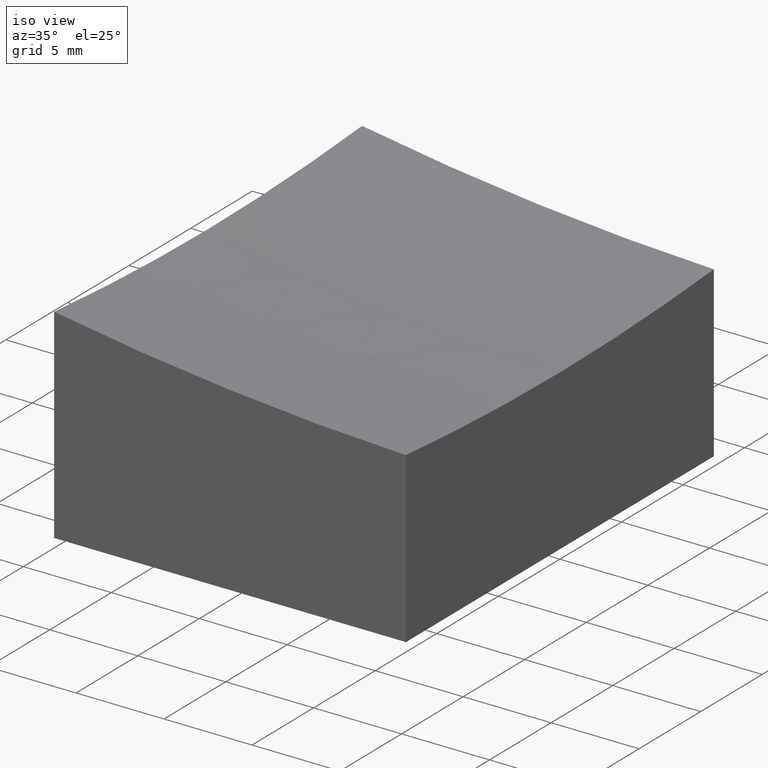
[diagram: clean part render]
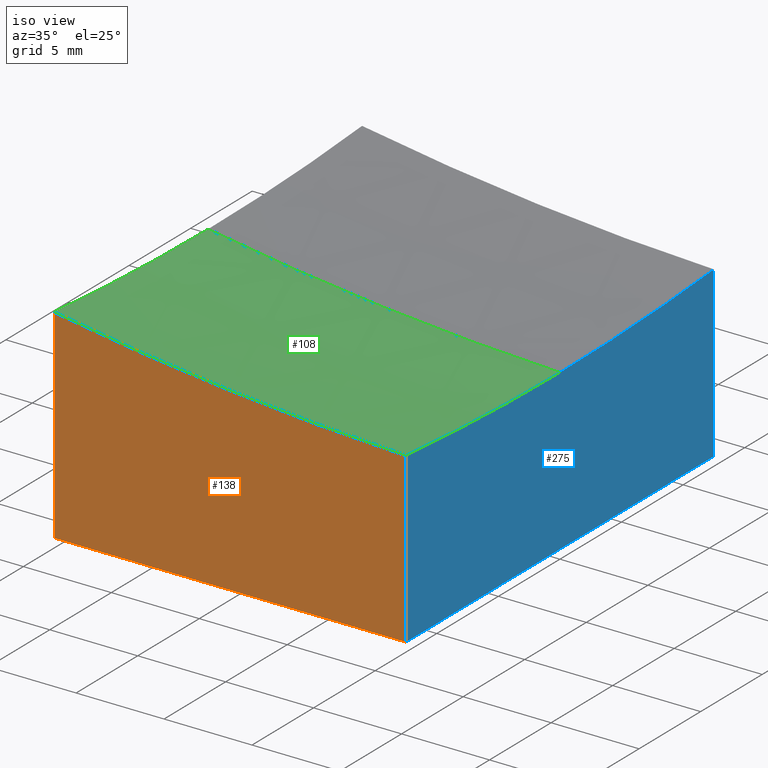
[diagram: same view with three faces highlighted in distinct colors, each labeled with its STEP entity id]
A machine part, iso view with three faces highlighted in distinct colors.
Their STEP definitions:

[orange] entity #138 — the highlighted planar face has unit normal (-0, 1, 0).
#6 = EDGE_CURVE ( 'NONE', #89, #10, #127, .T. ) ;
#7 = CARTESIAN_POINT ( 'NONE',  ( 10.00000000000000178, -12.50000000000000000, 10.00000000000000000 ) ) ;
#10 = VERTEX_POINT ( 'NONE', #186 ) ;
#14 = DIRECTION ( 'NONE',  ( 1.000000000000000000, 1.734723475976807094E-16, -0.000000000000000000 ) ) ;
#36 = EDGE_CURVE ( 'NONE', #89, #259, #84, .T. ) ;
#64 = VECTOR ( 'NONE', #160, 1000.000000000000000 ) ;
#73 = CARTESIAN_POINT ( 'NONE',  ( -10.00000000000000000, -12.50000000000000355, 1.627173468105036491 ) ) ;
#79 = DIRECTION ( 'NONE',  ( -1.734723475976807094E-16, 1.000000000000000000, 0.000000000000000000 ) ) ;
#84 = CIRCLE ( 'NONE', #144, 149.4782592887674753 ) ;
#89 = VERTEX_POINT ( 'NONE', #189 ) ;
#95 = DIRECTION ( 'NONE',  ( -1.000000000000000000, -1.740778375628798863E-16, 0.000000000000000000 ) ) ;
#100 = DIRECTION ( 'NONE',  ( -0.000000000000000000, -0.000000000000000000, -1.000000000000000000 ) ) ;
#110 = ORIENTED_EDGE ( 'NONE', *, *, #36, .T. ) ;
#116 = FACE_OUTER_BOUND ( 'NONE', #221, .T. ) ;
#119 = AXIS2_PLACEMENT_3D ( 'NONE', #227, #79, #203 ) ;
#127 = LINE ( 'NONE', #7, #266 ) ;
#130 = ORIENTED_EDGE ( 'NONE', *, *, #6, .F. ) ;
#138 = ADVANCED_FACE ( 'NONE', ( #116 ), #141, .F. ) ;
#141 = PLANE ( 'NONE',  #119 ) ;
#144 = AXIS2_PLACEMENT_3D ( 'NONE', #252, #181, #95 ) ;
#151 = VERTEX_POINT ( 'NONE', #229 ) ;
#160 = DIRECTION ( 'NONE',  ( -0.000000000000000000, -0.000000000000000000, -1.000000000000000000 ) ) ;
#163 = CARTESIAN_POINT ( 'NONE',  ( 10.00000000000000178, -12.50000000000000000, -10.00000000000000000 ) ) ;
#180 = LINE ( 'NONE', #270, #64 ) ;
#181 = DIRECTION ( 'NONE',  ( -1.734723475976807094E-16, 1.000000000000000000, 0.000000000000000000 ) ) ;
#182 = VECTOR ( 'NONE', #14, 1000.000000000000000 ) ;
#185 = LINE ( 'NONE', #163, #182 ) ;
#186 = CARTESIAN_POINT ( 'NONE',  ( 10.00000000000000178, -12.50000000000000000, -10.00000000000000000 ) ) ;
#189 = CARTESIAN_POINT ( 'NONE',  ( 10.00000000000000178, -12.50000000000000000, -0.3946116832866386481 ) ) ;
#203 = DIRECTION ( 'NONE',  ( -1.000000000000000000, -1.734723475976807094E-16, 0.000000000000000000 ) ) ;
#221 = EDGE_LOOP ( 'NONE', ( #130, #110, #265, #267 ) ) ;
#227 = CARTESIAN_POINT ( 'NONE',  ( 10.00000000000000178, -12.50000000000000000, 10.00000000000000000 ) ) ;
#229 = CARTESIAN_POINT ( 'NONE',  ( -9.999999999999998224, -12.50000000000000355, -10.00000000000000000 ) ) ;
#252 = CARTESIAN_POINT ( 'NONE',  ( 15.00000000000002132, -12.49999999999999822, 149.0000000000000000 ) ) ;
#259 = VERTEX_POINT ( 'NONE', #73 ) ;
#261 = EDGE_CURVE ( 'NONE', #151, #10, #185, .T. ) ;
#264 = EDGE_CURVE ( 'NONE', #259, #151, #180, .T. ) ;
#265 = ORIENTED_EDGE ( 'NONE', *, *, #264, .T. ) ;
#266 = VECTOR ( 'NONE', #100, 1000.000000000000000 ) ;
#267 = ORIENTED_EDGE ( 'NONE', *, *, #261, .T. ) ;
#270 = CARTESIAN_POINT ( 'NONE',  ( -9.999999999999998224, -12.50000000000000355, 10.00000000000000000 ) ) ;

[blue] entity #275 — the highlighted planar face has unit normal (-1, 0, 0).
#6 = EDGE_CURVE ( 'NONE', #89, #10, #127, .T. ) ;
#7 = CARTESIAN_POINT ( 'NONE',  ( 10.00000000000000178, -12.50000000000000000, 10.00000000000000000 ) ) ;
#10 = VERTEX_POINT ( 'NONE', #186 ) ;
#23 = LINE ( 'NONE', #53, #196 ) ;
#31 = VERTEX_POINT ( 'NONE', #200 ) ;
#32 = CARTESIAN_POINT ( 'NONE',  ( 10.00000000000000178, -12.50000000000000000, 10.00000000000000000 ) ) ;
#33 = CARTESIAN_POINT ( 'NONE',  ( 10.00000000000000178, 0.000000000000000000, 149.0000000000000000 ) ) ;
#35 = CARTESIAN_POINT ( 'NONE',  ( 10.00000000000000178, -12.50000000000000000, -10.00000000000000000 ) ) ;
#52 = DIRECTION ( 'NONE',  ( -1.000000000000000000, 0.000000000000000000, 0.000000000000000000 ) ) ;
#53 = CARTESIAN_POINT ( 'NONE',  ( 10.00000000000000178, 12.50000000000000000, 10.00000000000000000 ) ) ;
#55 = DIRECTION ( 'NONE',  ( -1.000000000000000000, 0.000000000000000000, 0.000000000000000000 ) ) ;
#57 = CARTESIAN_POINT ( 'NONE',  ( 10.00000000000000178, 12.50000000000000000, -0.3946116832866386481 ) ) ;
#58 = VECTOR ( 'NONE', #120, 1000.000000000000000 ) ;
#74 = DIRECTION ( 'NONE',  ( -0.000000000000000000, -0.000000000000000000, -1.000000000000000000 ) ) ;
#81 = EDGE_CURVE ( 'NONE', #10, #156, #226, .T. ) ;
#89 = VERTEX_POINT ( 'NONE', #189 ) ;
#97 = CARTESIAN_POINT ( 'NONE',  ( 10.00000000000000178, 12.50000000000000000, -10.00000000000000000 ) ) ;
#99 = EDGE_CURVE ( 'NONE', #31, #89, #101, .T. ) ;
#100 = DIRECTION ( 'NONE',  ( -0.000000000000000000, -0.000000000000000000, -1.000000000000000000 ) ) ;
#101 = CIRCLE ( 'NONE', #217, 149.9166435056495175 ) ;
#109 = ORIENTED_EDGE ( 'NONE', *, *, #6, .T. ) ;
#120 = DIRECTION ( 'NONE',  ( 0.000000000000000000, 1.000000000000000000, 0.000000000000000000 ) ) ;
#127 = LINE ( 'NONE', #7, #266 ) ;
#128 = AXIS2_PLACEMENT_3D ( 'NONE', #33, #210, #165 ) ;
#135 = ORIENTED_EDGE ( 'NONE', *, *, #81, .T. ) ;
#148 = EDGE_CURVE ( 'NONE', #176, #31, #190, .T. ) ;
#155 = ORIENTED_EDGE ( 'NONE', *, *, #148, .T. ) ;
#156 = VERTEX_POINT ( 'NONE', #97 ) ;
#165 = DIRECTION ( 'NONE',  ( 0.000000000000000000, 0.000000000000000000, 1.000000000000000000 ) ) ;
#173 = ORIENTED_EDGE ( 'NONE', *, *, #211, .F. ) ;
#176 = VERTEX_POINT ( 'NONE', #57 ) ;
#186 = CARTESIAN_POINT ( 'NONE',  ( 10.00000000000000178, -12.50000000000000000, -10.00000000000000000 ) ) ;
#187 = DIRECTION ( 'NONE',  ( 0.000000000000000000, 0.000000000000000000, 1.000000000000000000 ) ) ;
#189 = CARTESIAN_POINT ( 'NONE',  ( 10.00000000000000178, -12.50000000000000000, -0.3946116832866386481 ) ) ;
#190 = CIRCLE ( 'NONE', #128, 149.9166435056495175 ) ;
#196 = VECTOR ( 'NONE', #74, 1000.000000000000000 ) ;
#198 = ORIENTED_EDGE ( 'NONE', *, *, #99, .T. ) ;
#200 = CARTESIAN_POINT ( 'NONE',  ( 10.00000000000000178, 0.000000000000000000, -0.9166435056495170208 ) ) ;
#209 = DIRECTION ( 'NONE',  ( 0.000000000000000000, 0.000000000000000000, 1.000000000000000000 ) ) ;
#210 = DIRECTION ( 'NONE',  ( -1.000000000000000000, 0.000000000000000000, 0.000000000000000000 ) ) ;
#211 = EDGE_CURVE ( 'NONE', #176, #156, #23, .T. ) ;
#217 = AXIS2_PLACEMENT_3D ( 'NONE', #274, #55, #209 ) ;
#226 = LINE ( 'NONE', #35, #58 ) ;
#241 = EDGE_LOOP ( 'NONE', ( #173, #155, #198, #109, #135 ) ) ;
#244 = FACE_OUTER_BOUND ( 'NONE', #241, .T. ) ;
#250 = PLANE ( 'NONE',  #258 ) ;
#258 = AXIS2_PLACEMENT_3D ( 'NONE', #32, #52, #187 ) ;
#266 = VECTOR ( 'NONE', #100, 1000.000000000000000 ) ;
#274 = CARTESIAN_POINT ( 'NONE',  ( 10.00000000000000178, 0.000000000000000000, 149.0000000000000000 ) ) ;
#275 = ADVANCED_FACE ( 'NONE', ( #244 ), #250, .F. ) ;

[green] entity #108 — the highlighted spherical surface has radius 150 mm.
#2 = EDGE_CURVE ( 'NONE', #259, #260, #177, .T. ) ;
#4 = DIRECTION ( 'NONE',  ( 1.000000000000000000, 0.000000000000000000, 0.000000000000000000 ) ) ;
#29 = AXIS2_PLACEMENT_3D ( 'NONE', #118, #143, #206 ) ;
#31 = VERTEX_POINT ( 'NONE', #200 ) ;
#36 = EDGE_CURVE ( 'NONE', #89, #259, #84, .T. ) ;
#44 = DIRECTION ( 'NONE',  ( 0.000000000000000000, 0.000000000000000000, -1.000000000000000000 ) ) ;
#51 = DIRECTION ( 'NONE',  ( -1.000000000000000000, 0.000000000000000000, 0.000000000000000000 ) ) ;
#55 = DIRECTION ( 'NONE',  ( -1.000000000000000000, 0.000000000000000000, 0.000000000000000000 ) ) ;
#67 = ORIENTED_EDGE ( 'NONE', *, *, #36, .F. ) ;
#73 = CARTESIAN_POINT ( 'NONE',  ( -10.00000000000000000, -12.50000000000000355, 1.627173468105036491 ) ) ;
#84 = CIRCLE ( 'NONE', #144, 149.4782592887674753 ) ;
#89 = VERTEX_POINT ( 'NONE', #189 ) ;
#95 = DIRECTION ( 'NONE',  ( -1.000000000000000000, -1.740778375628798863E-16, 0.000000000000000000 ) ) ;
#98 = SPHERICAL_SURFACE ( 'NONE', #272, 150.0000000000000284 ) ;
#99 = EDGE_CURVE ( 'NONE', #31, #89, #101, .T. ) ;
#101 = CIRCLE ( 'NONE', #217, 149.9166435056495175 ) ;
#108 = ADVANCED_FACE ( 'NONE', ( #122 ), #98, .F. ) ;
#118 = CARTESIAN_POINT ( 'NONE',  ( 15.00000000000001954, 0.000000000000000000, 149.0000000000000000 ) ) ;
#122 = FACE_OUTER_BOUND ( 'NONE', #193, .T. ) ;
#143 = DIRECTION ( 'NONE',  ( 0.000000000000000000, -1.000000000000000000, 0.000000000000000000 ) ) ;
#144 = AXIS2_PLACEMENT_3D ( 'NONE', #252, #181, #95 ) ;
#149 = CIRCLE ( 'NONE', #29, 150.0000000000000284 ) ;
#152 = ORIENTED_EDGE ( 'NONE', *, *, #99, .F. ) ;
#169 = CARTESIAN_POINT ( 'NONE',  ( 15.00000000000001954, 0.000000000000000000, 149.0000000000000000 ) ) ;
#177 = CIRCLE ( 'NONE', #222, 147.9019945774904272 ) ;
#181 = DIRECTION ( 'NONE',  ( -1.734723475976807094E-16, 1.000000000000000000, 0.000000000000000000 ) ) ;
#189 = CARTESIAN_POINT ( 'NONE',  ( 10.00000000000000178, -12.50000000000000000, -0.3946116832866386481 ) ) ;
#192 = ORIENTED_EDGE ( 'NONE', *, *, #194, .F. ) ;
#193 = EDGE_LOOP ( 'NONE', ( #192, #237, #67, #152 ) ) ;
#194 = EDGE_CURVE ( 'NONE', #260, #31, #149, .T. ) ;
#197 = CARTESIAN_POINT ( 'NONE',  ( -9.999999999999998224, 0.000000000000000000, 1.098005422509568119 ) ) ;
#200 = CARTESIAN_POINT ( 'NONE',  ( 10.00000000000000178, 0.000000000000000000, -0.9166435056495170208 ) ) ;
#206 = DIRECTION ( 'NONE',  ( 0.000000000000000000, 0.000000000000000000, -1.000000000000000000 ) ) ;
#209 = DIRECTION ( 'NONE',  ( 0.000000000000000000, 0.000000000000000000, 1.000000000000000000 ) ) ;
#215 = CARTESIAN_POINT ( 'NONE',  ( -9.999999999999998224, 0.000000000000000000, 149.0000000000000000 ) ) ;
#217 = AXIS2_PLACEMENT_3D ( 'NONE', #274, #55, #209 ) ;
#222 = AXIS2_PLACEMENT_3D ( 'NONE', #215, #4, #44 ) ;
#233 = DIRECTION ( 'NONE',  ( 0.000000000000000000, 1.000000000000000000, -0.000000000000000000 ) ) ;
#237 = ORIENTED_EDGE ( 'NONE', *, *, #2, .F. ) ;
#252 = CARTESIAN_POINT ( 'NONE',  ( 15.00000000000002132, -12.49999999999999822, 149.0000000000000000 ) ) ;
#259 = VERTEX_POINT ( 'NONE', #73 ) ;
#260 = VERTEX_POINT ( 'NONE', #197 ) ;
#272 = AXIS2_PLACEMENT_3D ( 'NONE', #169, #233, #51 ) ;
#274 = CARTESIAN_POINT ( 'NONE',  ( 10.00000000000000178, 0.000000000000000000, 149.0000000000000000 ) ) ;